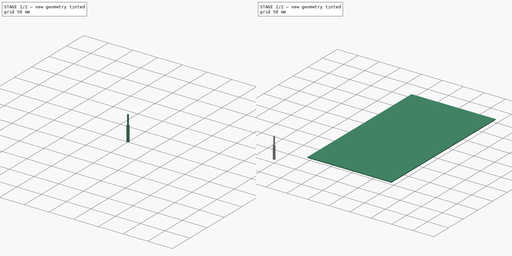
[diagram: build sequence overview — one tinted view per stage of 2, left to right]
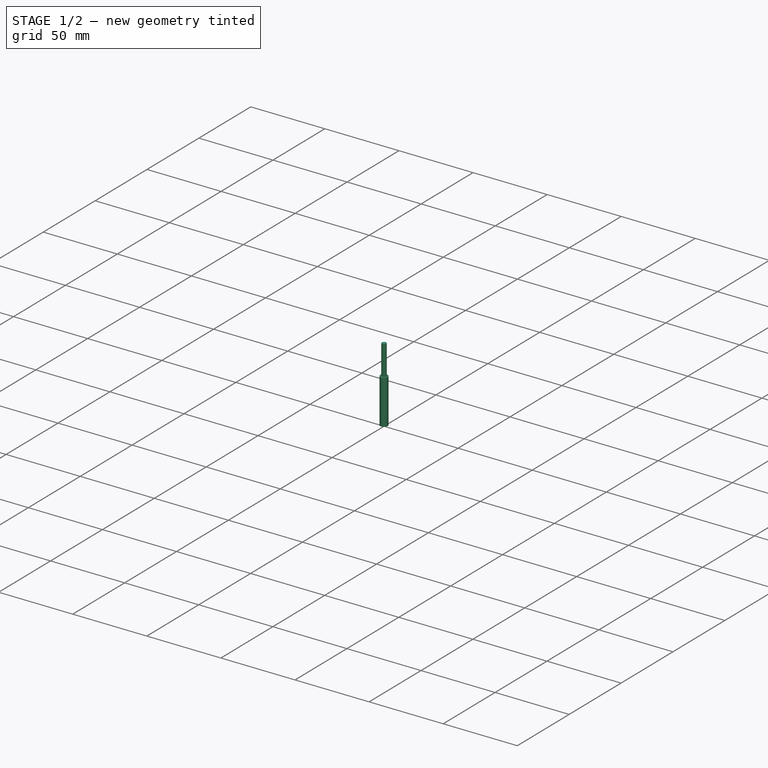
[diagram: stage 1 of 2 — iso view after this stage's code; geometry added in this stage tinted green]
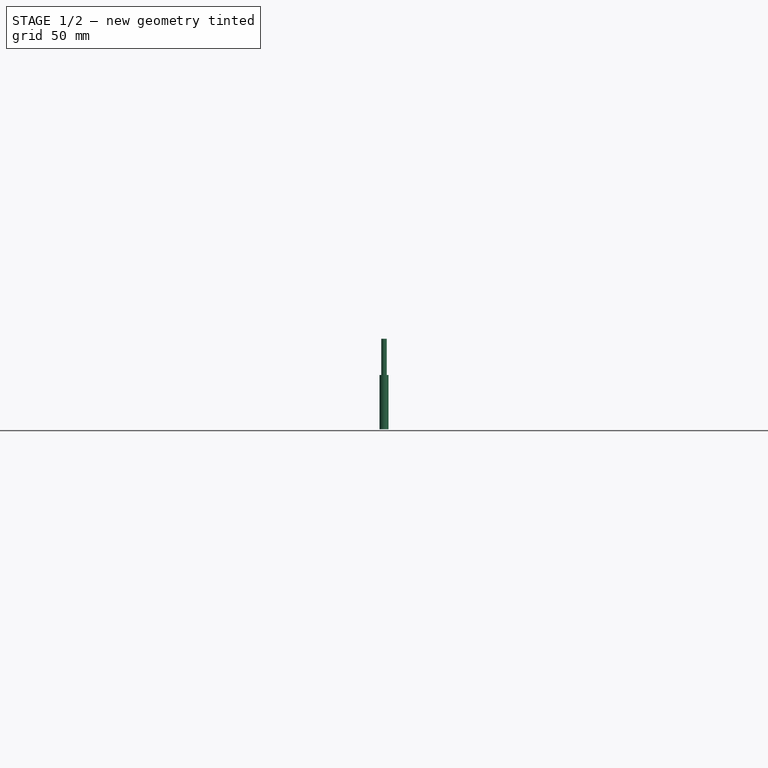
[diagram: stage 1 of 2 — front view after this stage's code; geometry added in this stage tinted green]
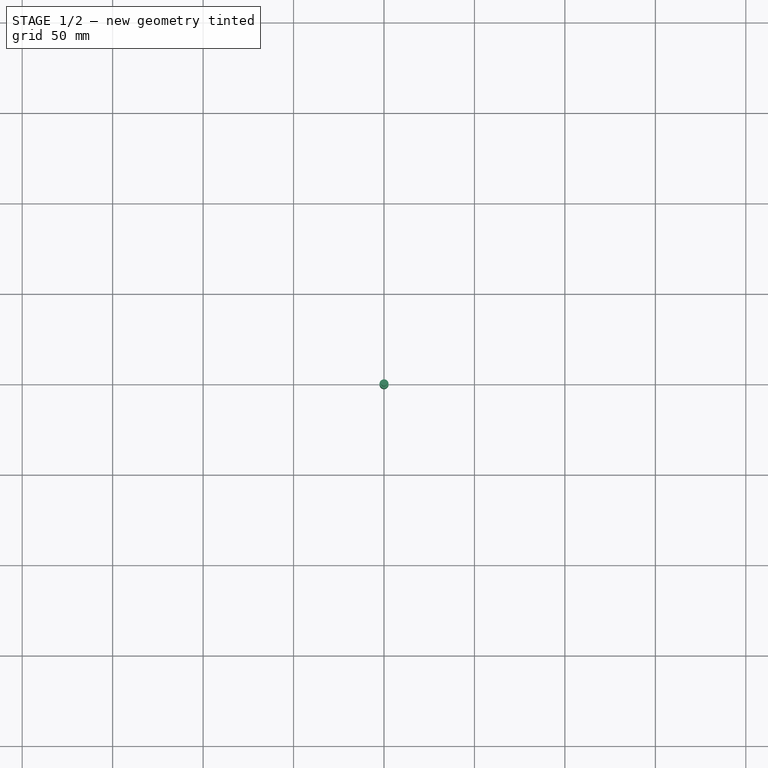
[diagram: stage 1 of 2 — top view after this stage's code; geometry added in this stage tinted green]
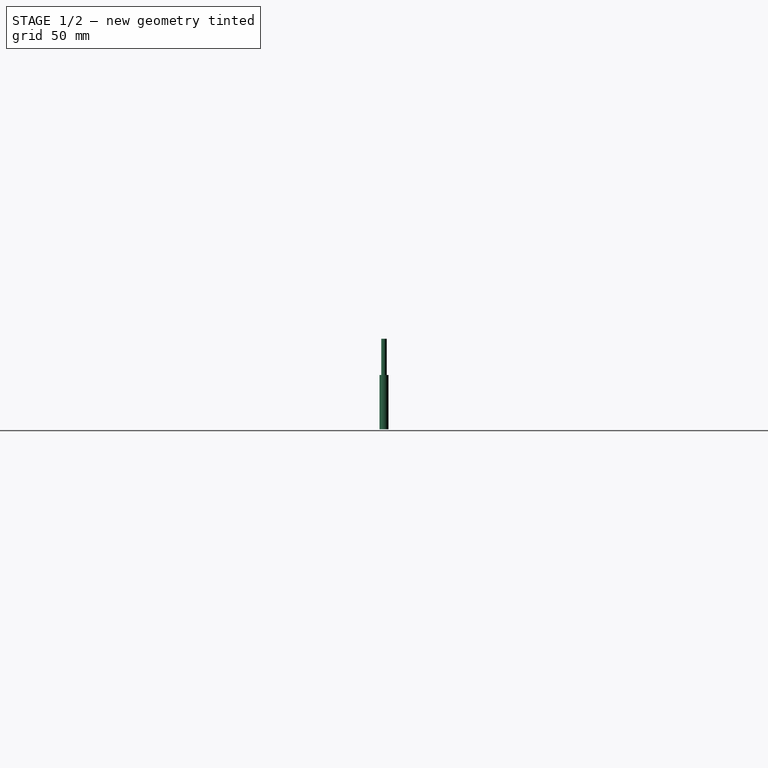
[diagram: stage 1 of 2 — right view after this stage's code; geometry added in this stage tinted green]
FCSTD DOCUMENT  (FreeCAD 1.0R39109 (Git))
Label: HousingAtari_T03.01
License: All rights reserved
LicenseURL: https://en.wikipedia.org/wiki/All_rights_reserved
objects: Sketcher::SketchObject×7, Part::Part2DObjectPython×5, App::DocumentObjectGroup×3, Path::FeaturePython×3, Part::FeaturePython×2, PartDesign::Body×1, App::FeaturePython×1
note: 22 computed .brp shape members not serialized (recipe doc carries the construction recipe); baked Part::Feature solids carry a one-line shape summary decoded from their .brp

FEATURE [Sketcher::SketchObject] Sketch  label="A3"
  ArcFitTolerance = 0
  FullyConstrained = false
  MakeInternals = false
  MapMode = 5
  sketch-geometry (7):
    g0: LineSegment StartX=0 StartY=420 StartZ=0 EndX=0 EndY=0 EndZ=0
    g1: LineSegment StartX=0 StartY=420 StartZ=0 EndX=148.5 EndY=420 EndZ=0
    g2: LineSegment StartX=148.5 StartY=420 StartZ=0 EndX=148.5 EndY=0 EndZ=0
    g3: LineSegment StartX=148.5 StartY=420 StartZ=0 EndX=297 EndY=420 EndZ=0
    g4: LineSegment StartX=297 StartY=420 StartZ=0 EndX=297 EndY=210 EndZ=0
    g5: LineSegment StartX=297 StartY=210 StartZ=0 EndX=297 EndY=0 EndZ=0
    g6: LineSegment StartX=297 StartY=210 StartZ=0 EndX=0 EndY=210 EndZ=0
  constraints (21):
    c: Vertical(g0)
    c: DistanceY(g0,g0) = 420
    c: Coincident(g1,g0)
    c: Horizontal(g1)
    c: Coincident(g2,g1)
    c: Coincident(g3,g1)
    c: Horizontal(g3)
    c: Equal(g1,g3)
    c: Vertical(g2)
    c: DistanceX(g0,g3) = 297
    c: Coincident(g4,g3)
    c: Vertical(g4)
    c: Coincident(g5,g4)
    c: PointOnObject(g5,g-1)
    c: Vertical(g5)
    c: Equal(g5,g4)
    c: PointOnObject(g0,g-1)
    c: PointOnObject(g0,g-2)
    c: Coincident(g6,g4)
    c: PointOnObject(g6,g0)
    c: Horizontal(g6)
FEATURE [Sketcher::SketchObject] Sketch001  label="BOX-OUTLINE"
  ArcFitTolerance = 0
  ExternalGeometry = -> [Sketch]
  FullyConstrained = false
  MakeInternals = false
  MapMode = 5
  sketch-geometry (60):
    g0: LineSegment StartX=83.5 StartY=362.836 StartZ=0 EndX=83.5 EndY=292.836 EndZ=0
    g1: LineSegment StartX=83.5 StartY=292.836 StartZ=0 EndX=83.5 EndY=222.836 EndZ=0
    g2: LineSegment StartX=83.5 StartY=222.836 StartZ=0 EndX=148.5 EndY=222.836 EndZ=0
    g3: LineSegment StartX=148.5 StartY=222.836 StartZ=0 EndX=213.5 EndY=222.836 EndZ=0
    g4: LineSegment StartX=213.5 StartY=222.836 StartZ=0 EndX=213.5 EndY=292.836 EndZ=0
    g5: LineSegment StartX=213.5 StartY=292.836 StartZ=0 EndX=213.5 EndY=362.836 EndZ=0
    g6: LineSegment StartX=213.5 StartY=362.836 StartZ=0 EndX=148.5 EndY=362.836 EndZ=0
    g7: LineSegment StartX=148.5 StartY=362.836 StartZ=0 EndX=83.5 EndY=362.836 EndZ=0
    g8: LineSegment StartX=83.5 StartY=222.836 StartZ=0 EndX=83.5 EndY=218.836 EndZ=0
    g9: LineSegment StartX=83.5 StartY=218.836 StartZ=0 EndX=213.5 EndY=218.836 EndZ=0
    g10: LineSegment StartX=213.5 StartY=218.836 StartZ=0 EndX=213.5 EndY=222.836 EndZ=0
    g11: LineSegment StartX=213.5 StartY=222.836 StartZ=0 EndX=217.5 EndY=222.836 EndZ=0
    g12: LineSegment StartX=217.5 StartY=222.836 StartZ=0 EndX=217.5 EndY=362.836 EndZ=0
    g13: LineSegment StartX=217.5 StartY=362.836 StartZ=0 EndX=213.5 EndY=362.836 EndZ=0
    g14: LineSegment StartX=213.5 StartY=362.836 StartZ=0 EndX=213.5 EndY=366.836 EndZ=0
    g15: LineSegment StartX=213.5 StartY=366.836 StartZ=0 EndX=83.5 EndY=366.836 EndZ=0
    g16: LineSegment StartX=83.5 StartY=366.836 StartZ=0 EndX=83.5 EndY=362.836 EndZ=0
    g17: LineSegment StartX=83.5 StartY=222.836 StartZ=0 EndX=79.5 EndY=222.836 EndZ=0
    g18: LineSegment StartX=79.5 StartY=222.836 StartZ=0 EndX=79.5 EndY=362.836 EndZ=0
    g19: LineSegment StartX=79.5 StartY=362.836 StartZ=0 EndX=83.5 EndY=362.836 EndZ=0
    g20: LineSegment StartX=83.5 StartY=218.836 StartZ=0 EndX=83.5 EndY=188.836 EndZ=0
    g21: LineSegment StartX=83.5 StartY=188.836 StartZ=0 EndX=213.5 EndY=188.836 EndZ=0
    g22: LineSegment StartX=213.5 StartY=188.836 StartZ=0 EndX=213.5 EndY=218.836 EndZ=0
    g23: LineSegment StartX=217.5 StartY=222.836 StartZ=0 EndX=243.5 EndY=222.836 EndZ=0
    g24: LineSegment StartX=243.5 StartY=222.836 StartZ=0 EndX=243.5 EndY=362.836 EndZ=0
    g25: LineSegment StartX=243.5 StartY=362.836 StartZ=0 EndX=217.5 EndY=362.836 EndZ=0
    g26: LineSegment StartX=213.5 StartY=366.836 StartZ=0 EndX=213.5 EndY=396.836 EndZ=0
    g27: LineSegment StartX=213.5 StartY=396.836 StartZ=0 EndX=83.5 EndY=396.836 EndZ=0
    g28: LineSegment StartX=83.5 StartY=396.836 StartZ=0 EndX=83.5 EndY=366.836 EndZ=0
    g29: LineSegment StartX=79.5 StartY=362.836 StartZ=0 EndX=53.5 EndY=362.836 EndZ=0
    g30: LineSegment StartX=53.5 StartY=362.836 StartZ=0 EndX=53.5 EndY=222.836 EndZ=0
    g31: LineSegment StartX=53.5 StartY=222.836 StartZ=0 EndX=79.5 EndY=222.836 EndZ=0
    g32: LineSegment StartX=213.5 StartY=188.836 StartZ=0 EndX=217.5 EndY=188.836 EndZ=0
    g33: LineSegment StartX=217.5 StartY=188.836 StartZ=0 EndX=217.5 EndY=222.836 EndZ=0
    g34: LineSegment StartX=213.5 StartY=218.836 StartZ=0 EndX=243.5 EndY=218.836 EndZ=0
    g35: LineSegment StartX=243.5 StartY=218.836 StartZ=0 EndX=243.5 EndY=222.836 EndZ=0
    g36: LineSegment StartX=213.5 StartY=366.836 StartZ=0 EndX=243.5 EndY=366.836 EndZ=0
    g37: LineSegment StartX=243.5 StartY=366.836 StartZ=0 EndX=243.5 EndY=362.836 EndZ=0
    g38: LineSegment StartX=217.5 StartY=362.836 StartZ=0 EndX=217.5 EndY=396.836 EndZ=0
    g39: LineSegment StartX=217.5 StartY=396.836 StartZ=0 EndX=213.5 EndY=396.836 EndZ=0
    g40: LineSegment StartX=83.5 StartY=396.836 StartZ=0 EndX=79.5 EndY=396.836 EndZ=0
    g41: LineSegment StartX=79.5 StartY=396.836 StartZ=0 EndX=79.5 EndY=362.836 EndZ=0
    g42: LineSegment StartX=53.5 StartY=362.836 StartZ=0 EndX=53.5 EndY=366.836 EndZ=0
    g43: LineSegment StartX=53.5 StartY=366.836 StartZ=0 EndX=83.5 EndY=366.836 EndZ=0
    g44: LineSegment StartX=53.5 StartY=222.836 StartZ=0 EndX=53.5 EndY=218.836 EndZ=0
    g45: LineSegment StartX=53.5 StartY=218.836 StartZ=0 EndX=83.5 EndY=218.836 EndZ=0
    g46: LineSegment StartX=79.5 StartY=222.836 StartZ=0 EndX=79.5 EndY=188.836 EndZ=0
    g47: LineSegment StartX=79.5 StartY=188.836 StartZ=0 EndX=83.5 EndY=188.836 EndZ=0
    g48: LineSegment StartX=83.5 StartY=188.836 StartZ=0 EndX=83.5 EndY=44.8363 EndZ=0
    g49: LineSegment StartX=83.5 StartY=44.8363 StartZ=0 EndX=213.5 EndY=44.8363 EndZ=0
    g50: LineSegment StartX=213.5 StartY=44.8363 StartZ=0 EndX=213.5 EndY=188.836 EndZ=0
    g51: LineSegment StartX=79.5 StartY=188.836 StartZ=0 EndX=79.5 EndY=48.8363 EndZ=0
    g52: LineSegment StartX=79.5 StartY=48.8363 StartZ=0 EndX=217.5 EndY=48.8363 EndZ=0
    g53: LineSegment StartX=217.5 StartY=48.8363 StartZ=0 EndX=217.5 EndY=188.836 EndZ=0
    g54: LineSegment StartX=79.5 StartY=192.836 StartZ=0 EndX=217.5 EndY=192.836 EndZ=0
    g55: LineSegment StartX=79.5 StartY=48.8363 StartZ=0 EndX=79.5 EndY=44.8363 EndZ=0
    g56: LineSegment StartX=217.5 StartY=48.8363 StartZ=0 EndX=217.5 EndY=44.8363 EndZ=0
    g57: LineSegment StartX=79.5 StartY=392.836 StartZ=0 EndX=217.5 EndY=392.836 EndZ=0
    g58: LineSegment StartX=247.5 StartY=366.836 StartZ=0 EndX=247.5 EndY=218.836 EndZ=0
    g59: LineSegment StartX=49.5 StartY=366.836 StartZ=0 EndX=49.5 EndY=218.836 EndZ=0
  constraints (166):
    c: Vertical(g0)
    c: Coincident(g1,g0)
    c: Vertical(g1)
    c: Coincident(g2,g1)
    c: Horizontal(g2)
    c: Coincident(g3,g2)
    c: Horizontal(g3)
    c: Coincident(g4,g3)
    c: Vertical(g4)
    c: Coincident(g5,g4)
    c: Vertical(g5)
    c: Horizontal(g6)
    c: Coincident(g7,g6)
    c: Coincident(g7,g0)
    c: Horizontal(g7)
    c: Vertical(g2,g6)
    c: Horizontal(g0,g4)
    c: Equal(g4,g5)
    c: Equal(g7,g6)
    c: Coincident(g5,g6)
    c: DistanceY(g1,g0) = 140
    c: DistanceX(g0,g5) = 130
    c: Coincident(g8,g1)
    c: Vertical(g8)
    c: Coincident(g9,g8)
    c: Horizontal(g9)
    c: Coincident(g10,g9)
    c: Coincident(g10,g3)
    c: Vertical(g10)
    c: Coincident(g11,g3)
    c: Horizontal(g11)
    c: Coincident(g12,g11)
    c: Vertical(g12)
    c: Coincident(g13,g12)
    c: Coincident(g13,g5)
    c: Horizontal(g13)
    c: Equal(g10,g11)
    c: DistanceY(g10,g10) = 4
    c: Coincident(g14,g5)
    c: Vertical(g14)
    c: Coincident(g15,g14)
    c: Horizontal(g15)
    c: Coincident(g16,g15)
    c: Coincident(g16,g0)
    c: Vertical(g16)
    c: Equal(g13,g14)
    c: Coincident(g17,g1)
    c: Horizontal(g17)
    c: Coincident(g18,g17)
    c: Vertical(g18)
    c: Coincident(g19,g18)
    c: Coincident(g19,g0)
    c: Horizontal(g19)
    c: Equal(g16,g19)
    c: Coincident(g20,g8)
    c: Vertical(g20)
    c: Coincident(g21,g20)
    c: Horizontal(g21)
    c: Coincident(g22,g21)
    c: Coincident(g22,g9)
    c: Coincident(g23,g11)
    c: Horizontal(g23)
    c: Coincident(g24,g23)
    c: Vertical(g24)
    c: Coincident(g25,g24)
    c: Coincident(g25,g12)
    c: Horizontal(g25)
    c: Coincident(g26,g14)
    c: Vertical(g26)
    c: Coincident(g27,g26)
    c: Horizontal(g27)
    c: Coincident(g28,g27)
    c: Coincident(g28,g15)
    c: Coincident(g29,g18)
    c: Horizontal(g29)
    c: Coincident(g30,g29)
    c: Vertical(g30)
    c: Coincident(g31,g30)
    c: Coincident(g31,g17)
    c: Horizontal(g31)
    c: Vertical(g22)
    c: Coincident(g32,g21)
    c: Horizontal(g32)
    c: Coincident(g33,g32)
    c: Coincident(g33,g11)
    c: Vertical(g33)
    c: Coincident(g34,g9)
    c: Horizontal(g34)
    c: Coincident(g35,g34)
    c: Coincident(g35,g23)
    c: Coincident(g36,g14)
    c: Horizontal(g36)
    c: Coincident(g37,g36)
    c: Coincident(g37,g24)
    c: Coincident(g38,g12)
    c: Vertical(g38)
    c: Coincident(g39,g38)
    c: Coincident(g39,g26)
    c: Horizontal(g39)
    c: Coincident(g40,g27)
    c: Horizontal(g40)
    c: Coincident(g41,g40)
    c: Coincident(g41,g18)
    c: Coincident(g42,g29)
    c: Vertical(g42)
    c: Coincident(g43,g42)
    c: Coincident(g43,g15)
    c: Coincident(g44,g30)
    c: Vertical(g44)
    c: Coincident(g45,g44)
    c: Coincident(g45,g8)
    c: Horizontal(g45)
    c: Coincident(g46,g17)
    c: Coincident(g47,g46)
    c: Coincident(g47,g20)
    c: Vertical(g37)
    c: Vertical(g46)
    c: Vertical(g35)
    c: Horizontal(g43)
    c: Horizontal(g47)
    c: DistanceY(g15,g27) = 30
    c: Vertical(g41)
    c: Vertical(g28)
    c: DistanceY(g22,g22) = 30
    c: Distance(g43,g43) = 30
    c: DistanceX(g34,g34) = 30
    c: Coincident(g48,g20)
    c: Vertical(g48)
    c: Coincident(g49,g48)
    c: Horizontal(g49)
    c: Coincident(g50,g49)
    c: Coincident(g50,g21)
    c: Vertical(g50)
    c: Coincident(g51,g46)
    c: Vertical(g51)
    c: Coincident(g52,g51)
    c: Horizontal(g52)
    c: Coincident(g53,g52)
    c: Coincident(g53,g32)
    c: Vertical(g53)
    c: PointOnObject(g54,g46)
    c: PointOnObject(g54,g33)
    c: Horizontal(g54)
    c: DistanceY(g46,g54) = 4
    c: Coincident(g55,g51)
    c: PointOnObject(g55,g49)
    c: Vertical(g55)
    c: DistanceY(g55,g55) = 4
    c: DistanceY(g51,g51) = 140
    c: DistanceY(g34,g36) = 148
    c: Coincident(g56,g52)
    c: PointOnObject(g56,g49)
    c: Vertical(g56)
    c: DistanceY(g56,g54) = 148
    c: PointOnObject(g57,g41)
    c: PointOnObject(g57,g38)
    c: Horizontal(g57)
    c: DistanceY(g57,g38) = 4
    c: PointOnObject(g6,g-3)
    c: PointOnObject(g58,g36)
    c: PointOnObject(g58,g34)
    c: Vertical(g58)
    c: PointOnObject(g59,g43)
    c: PointOnObject(g59,g45)
    c: Vertical(g59)
    c: DistanceX(g42,g59) = -4
FEATURE [PartDesign::Body] Body
  AllowCompound = false
  Group = -> [Sketch,Sketch001]
  Origin = -> Origin
FEATURE [Sketcher::SketchObject] Sketch002  label="CUT-BOX-BASE"
  ArcFitTolerance = 0
  ExternalGeometry = -> [Sketch001,Sketch]
  FullyConstrained = true
  MakeInternals = false
  MapMode = 5
  sketch-geometry (44):
    g0: LineSegment StartX=107.1 StartY=366.836 StartZ=0 EndX=79.5 EndY=366.836 EndZ=0
    g1: LineSegment StartX=189.9 StartY=366.836 StartZ=0 EndX=217.5 EndY=366.836 EndZ=0
    g2: LineSegment StartX=134.7 StartY=366.836 StartZ=0 EndX=162.3 EndY=366.836 EndZ=0
    g3: LineSegment StartX=162.3 StartY=362.836 StartZ=0 EndX=189.9 EndY=362.836 EndZ=0
    g4: LineSegment StartX=107.1 StartY=362.836 StartZ=0 EndX=134.7 EndY=362.836 EndZ=0
    g5: LineSegment StartX=107.1 StartY=366.836 StartZ=0 EndX=107.1 EndY=362.836 EndZ=0
    g6: LineSegment StartX=134.7 StartY=366.836 StartZ=0 EndX=134.7 EndY=362.836 EndZ=0
    g7: LineSegment StartX=162.3 StartY=366.836 StartZ=0 EndX=162.3 EndY=362.836 EndZ=0
    g8: LineSegment StartX=189.9 StartY=362.836 StartZ=0 EndX=189.9 EndY=366.836 EndZ=0
    g9: LineSegment [constr] StartX=107.1 StartY=362.836 StartZ=0 EndX=107.1 EndY=222.836 EndZ=0
    g10: LineSegment [constr] StartX=134.7 StartY=362.836 StartZ=0 EndX=134.7 EndY=222.836 EndZ=0
    g11: LineSegment [constr] StartX=162.3 StartY=362.836 StartZ=0 EndX=162.3 EndY=222.836 EndZ=0
    g12: LineSegment [constr] StartX=189.9 StartY=362.836 StartZ=0 EndX=189.9 EndY=222.836 EndZ=0
    g13: LineSegment StartX=79.5 StartY=218.836 StartZ=0 EndX=107.1 EndY=218.836 EndZ=0
    g14: LineSegment StartX=107.1 StartY=218.836 StartZ=0 EndX=107.1 EndY=222.836 EndZ=0
    g15: LineSegment StartX=107.1 StartY=222.836 StartZ=0 EndX=134.7 EndY=222.836 EndZ=0
    g16: LineSegment StartX=134.7 StartY=222.836 StartZ=0 EndX=134.7 EndY=218.836 EndZ=0
    g17: LineSegment StartX=134.7 StartY=218.836 StartZ=0 EndX=162.3 EndY=218.836 EndZ=0
    g18: LineSegment StartX=162.3 StartY=218.836 StartZ=0 EndX=162.3 EndY=222.836 EndZ=0
    g19: LineSegment StartX=162.3 StartY=222.836 StartZ=0 EndX=189.9 EndY=222.836 EndZ=0
    g20: LineSegment StartX=189.9 StartY=222.836 StartZ=0 EndX=189.9 EndY=218.836 EndZ=0
    g21: LineSegment StartX=189.9 StartY=218.836 StartZ=0 EndX=217.5 EndY=218.836 EndZ=0
    g22: LineSegment StartX=79.5 StartY=366.836 StartZ=0 EndX=79.5 EndY=336.163 EndZ=0
    g23: LineSegment StartX=79.5 StartY=305.49 StartZ=0 EndX=79.5 EndY=274.818 EndZ=0
    g24: LineSegment StartX=79.5 StartY=218.836 StartZ=0 EndX=79.5 EndY=244.145 EndZ=0
    g25: LineSegment StartX=79.5 StartY=336.163 StartZ=0 EndX=83.5 EndY=336.163 EndZ=0
    g26: LineSegment StartX=79.5 StartY=305.49 StartZ=0 EndX=83.5 EndY=305.49 EndZ=0
    g27: LineSegment StartX=79.5 StartY=274.818 StartZ=0 EndX=83.5 EndY=274.818 EndZ=0
    g28: LineSegment StartX=79.5 StartY=244.145 StartZ=0 EndX=83.5 EndY=244.145 EndZ=0
    g29: LineSegment StartX=83.5 StartY=305.49 StartZ=0 EndX=83.5 EndY=336.163 EndZ=0
    g30: LineSegment StartX=83.5 StartY=244.145 StartZ=0 EndX=83.5 EndY=274.818 EndZ=0
    g31: LineSegment [constr] StartX=83.5 StartY=336.163 StartZ=0 EndX=213.5 EndY=336.163 EndZ=0
    g32: LineSegment [constr] StartX=83.5 StartY=305.49 StartZ=0 EndX=213.5 EndY=305.49 EndZ=0
    g33: LineSegment [constr] StartX=83.5 StartY=274.818 StartZ=0 EndX=213.5 EndY=274.818 EndZ=0
    g34: LineSegment [constr] StartX=83.5 StartY=244.145 StartZ=0 EndX=213.5 EndY=244.145 EndZ=0
    g35: LineSegment StartX=217.5 StartY=366.836 StartZ=0 EndX=217.5 EndY=336.163 EndZ=0
    g36: LineSegment StartX=213.5 StartY=336.163 StartZ=0 EndX=217.5 EndY=336.163 EndZ=0
    g37: LineSegment StartX=213.5 StartY=305.49 StartZ=0 EndX=213.5 EndY=336.163 EndZ=0
    g38: LineSegment StartX=213.5 StartY=305.49 StartZ=0 EndX=217.5 EndY=305.49 EndZ=0
    g39: LineSegment StartX=213.5 StartY=274.818 StartZ=0 EndX=213.5 EndY=244.145 EndZ=0
    g40: LineSegment StartX=213.5 StartY=244.145 StartZ=0 EndX=217.5 EndY=244.145 EndZ=0
    g41: LineSegment StartX=217.5 StartY=244.145 StartZ=0 EndX=217.5 EndY=218.836 EndZ=0
    g42: LineSegment StartX=213.5 StartY=274.818 StartZ=0 EndX=217.5 EndY=274.818 EndZ=0
    g43: LineSegment StartX=217.5 StartY=274.818 StartZ=0 EndX=217.5 EndY=305.49 EndZ=0
  constraints (126):
    c: PointOnObject(g0,g-5)
    c: PointOnObject(g0,g-9)
    c: Horizontal(g0)
    c: PointOnObject(g1,g-5)
    c: PointOnObject(g1,g-10)
    c: Horizontal(g1)
    c: PointOnObject(g2,g-5)
    c: PointOnObject(g2,g-5)
    c: PointOnObject(g3,g-4)
    c: PointOnObject(g3,g-4)
    c: PointOnObject(g4,g-3)
    c: PointOnObject(g4,g-3)
    c: Coincident(g5,g0)
    c: Coincident(g5,g4)
    c: Coincident(g6,g2)
    c: Coincident(g6,g4)
    c: Coincident(g7,g2)
    c: Coincident(g7,g3)
    c: Coincident(g8,g3)
    c: Coincident(g8,g1)
    c: Vertical(g5)
    c: Vertical(g6)
    c: Vertical(g7)
    c: Vertical(g8)
    c: Equal(g0,g1)
    c: Equal(g4,g2)
    c: Equal(g3,g2)
    c: Equal(g0,g2)
    c: Coincident(g9,g4)
    c: PointOnObject(g9,g-6)
    c: Vertical(g9)
    c: Coincident(g10,g4)
    c: PointOnObject(g10,g-6)
    c: Vertical(g10)
    c: Coincident(g11,g3)
    c: PointOnObject(g11,g-8)
    c: Vertical(g11)
    c: Coincident(g12,g3)
    c: PointOnObject(g12,g-8)
    c: Vertical(g12)
    c: PointOnObject(g13,g-12)
    c: PointOnObject(g13,g-7)
    c: Horizontal(g13)
    c: Coincident(g14,g13)
    c: Coincident(g14,g9)
    c: Coincident(g15,g9)
    c: Coincident(g15,g10)
    c: Coincident(g16,g10)
    c: PointOnObject(g16,g-7)
    c: Coincident(g17,g16)
    c: PointOnObject(g17,g-7)
    c: Coincident(g18,g17)
    c: Coincident(g18,g11)
    c: Coincident(g19,g11)
    c: Coincident(g19,g12)
    c: Coincident(g20,g12)
    c: PointOnObject(g20,g-7)
    c: Vertical(g20)
    c: Coincident(g21,g20)
    c: PointOnObject(g21,g-11)
    c: Horizontal(g21)
    c: Vertical(g14)
    c: Vertical(g16)
    c: Vertical(g18)
    c: DistanceY(g21,g1) = 148
    c: DistanceX(g0,g1) = 138
    c: Coincident(g22,g0)
    c: PointOnObject(g22,g-14)
    c: PointOnObject(g23,g-14)
    c: PointOnObject(g23,g-14)
    c: Coincident(g24,g13)
    c: PointOnObject(g24,g-14)
    c: Coincident(g25,g22)
    c: PointOnObject(g25,g-16)
    c: Horizontal(g25)
    c: Coincident(g26,g23)
    c: PointOnObject(g26,g-16)
    c: Horizontal(g26)
    c: Coincident(g27,g23)
    c: PointOnObject(g27,g-17)
    c: Coincident(g28,g24)
    c: PointOnObject(g28,g-17)
    c: Horizontal(g28)
    c: Horizontal(g27)
    c: Equal(g22,g23)
    c: Coincident(g29,g26)
    c: Coincident(g29,g25)
    c: Coincident(g30,g28)
    c: Coincident(g30,g27)
    c: Equal(g30,g23)
    c: Equal(g29,g30)
    c: Equal(g29,g22)
    c: Coincident(g31,g25)
    c: PointOnObject(g31,g-18)
    c: Horizontal(g31)
    c: Coincident(g32,g26)
    c: PointOnObject(g32,g-18)
    c: Horizontal(g32)
    c: Coincident(g33,g27)
    c: PointOnObject(g33,g-19)
    c: Horizontal(g33)
    c: Coincident(g34,g28)
    c: PointOnObject(g34,g-19)
    c: Horizontal(g34)
    c: Coincident(g35,g1)
    c: PointOnObject(g35,g-15)
    c: Coincident(g36,g31)
    c: Coincident(g36,g35)
    c: Coincident(g37,g32)
    c: Coincident(g37,g31)
    c: Coincident(g38,g32)
    c: PointOnObject(g38,g-15)
    c: Coincident(g39,g33)
    c: Coincident(g39,g34)
    c: Coincident(g40,g34)
    c: PointOnObject(g40,g-15)
    c: Coincident(g41,g40)
    c: Coincident(g41,g21)
    c: Horizontal(g36)
    c: Horizontal(g38)
    c: Horizontal(g40)
    c: Coincident(g42,g33)
    c: PointOnObject(g42,g-15)
    c: Horizontal(g42)
    c: Coincident(g43,g42)
    c: Coincident(g43,g38)
FEATURE [Sketcher::SketchObject] Sketch003  label="CUT-Functional"
  ArcFitTolerance = 0
  ExternalGeometry = -> [Sketch]
  FullyConstrained = false
  MakeInternals = false
  MapMode = 5
  sketch-geometry (36):
    g0: LineSegment [constr] StartX=118.5 StartY=350.114 StartZ=0 EndX=148.5 EndY=350.114 EndZ=0
    g1: LineSegment [constr] StartX=148.5 StartY=350.114 StartZ=0 EndX=178.5 EndY=350.114 EndZ=0
    g2: Circle CenterX=118.5 CenterY=350.114 CenterZ=0 NormalX=0 NormalY=0 NormalZ=1 AngleXU=0 Radius=8
    g3: Circle CenterX=148.5 CenterY=350.114 CenterZ=0 NormalX=0 NormalY=0 NormalZ=1 AngleXU=0 Radius=8
    g4: Circle CenterX=178.5 CenterY=350.114 CenterZ=0 NormalX=0 NormalY=0 NormalZ=1 AngleXU=0 Radius=8
    g5: Circle CenterX=163.5 CenterY=331.863 CenterZ=0 NormalX=0 NormalY=0 NormalZ=1 AngleXU=0 Radius=8
    g6: Circle CenterX=133.5 CenterY=331.863 CenterZ=0 NormalX=0 NormalY=0 NormalZ=1 AngleXU=0 Radius=8
    g7: LineSegment [constr] StartX=133.5 StartY=331.863 StartZ=0 EndX=163.5 EndY=331.863 EndZ=0
    g8: LineSegment [constr] StartX=133.5 StartY=331.863 StartZ=0 EndX=118.5 EndY=350.114 EndZ=0
    g9: LineSegment [constr] StartX=163.5 StartY=331.863 StartZ=0 EndX=178.5 EndY=350.114 EndZ=0
    g10: LineSegment StartX=136 StartY=316.42 StartZ=0 EndX=136 EndY=306.42 EndZ=0
    g11: LineSegment StartX=136 StartY=306.42 StartZ=0 EndX=161 EndY=306.42 EndZ=0
    g12: LineSegment StartX=161 StartY=306.42 StartZ=0 EndX=161 EndY=316.42 EndZ=0
    g13: LineSegment StartX=136 StartY=316.42 StartZ=0 EndX=148.5 EndY=316.42 EndZ=0
    g14: LineSegment StartX=161 StartY=316.42 StartZ=0 EndX=148.5 EndY=316.42 EndZ=0
    g15: ArcOfCircle CenterX=230.249 CenterY=259.609 CenterZ=0 NormalX=0 NormalY=0 NormalZ=1 AngleXU=0 Radius=5 StartAngle=-1.05604e-11 EndAngle=3.14159
    g16: ArcOfCircle CenterX=230.249 CenterY=239.609 CenterZ=0 NormalX=0 NormalY=0 NormalZ=1 AngleXU=0 Radius=5 StartAngle=3.14159 EndAngle=6.28319
    g17: LineSegment StartX=235.249 StartY=259.609 StartZ=0 EndX=235.249 EndY=239.609 EndZ=0
    g18: LineSegment StartX=225.249 StartY=259.609 StartZ=0 EndX=225.249 EndY=239.609 EndZ=0
    g19: LineSegment [constr] StartX=67.0736 StartY=260.219 StartZ=0 EndX=67.0736 EndY=247.719 EndZ=0
    g20: LineSegment [constr] StartX=67.0736 StartY=247.719 StartZ=0 EndX=67.0736 EndY=235.219 EndZ=0
    g21: Circle CenterX=67.0736 CenterY=235.219 CenterZ=0 NormalX=0 NormalY=0 NormalZ=1 AngleXU=0 Radius=2
    g22: Circle CenterX=67.0736 CenterY=260.219 CenterZ=0 NormalX=0 NormalY=0 NormalZ=1 AngleXU=0 Radius=2
    g23: LineSegment [constr] StartX=67.0736 StartY=247.719 StartZ=0 EndX=70.7296 EndY=247.719 EndZ=0
    g24: LineSegment [constr] StartX=70.7296 StartY=247.719 StartZ=0 EndX=70.7296 EndY=255.982 EndZ=0
    g25: LineSegment [constr] StartX=70.7296 StartY=255.982 StartZ=0 EndX=62.7211 EndY=255.982 EndZ=0
    g26: LineSegment [constr] StartX=62.7211 StartY=255.982 StartZ=0 EndX=62.7211 EndY=247.719 EndZ=0
    g27: LineSegment [constr] StartX=62.7211 StartY=247.719 StartZ=0 EndX=67.0736 EndY=247.719 EndZ=0
    g28: LineSegment [constr] StartX=62.7296 StartY=238.982 StartZ=0 EndX=70.7296 EndY=238.982 EndZ=0
    g29: LineSegment [constr] StartX=70.7296 StartY=238.982 StartZ=0 EndX=70.7296 EndY=247.719 EndZ=0
    g30: LineSegment [constr] StartX=62.7296 StartY=255.995 StartZ=0 EndX=62.7211 EndY=238.995 EndZ=0
    g31: LineSegment StartX=62.7296 StartY=255.995 StartZ=0 EndX=62.7296 EndY=238.982 EndZ=0
    g32: LineSegment StartX=62.7296 StartY=239.09 StartZ=0 EndX=70.7296 EndY=240.829 EndZ=0
    g33: LineSegment StartX=70.7296 StartY=254.608 StartZ=0 EndX=62.9407 EndY=255.982 EndZ=0
    g34: LineSegment StartX=70.7296 StartY=240.829 StartZ=0 EndX=70.7296 EndY=247.719 EndZ=0
    g35: LineSegment StartX=70.7296 StartY=247.719 StartZ=0 EndX=70.7296 EndY=254.608 EndZ=0
  constraints (84):
    c: Horizontal(g0)
    c: Coincident(g1,g0)
    c: Horizontal(g1)
    c: Equal(g1,g0)
    c: Coincident(g2,g0)
    c: Coincident(g3,g0)
    c: Coincident(g4,g1)
    c: Equal(g4,g3)
    c: Equal(g3,g2)
    c: Diameter(g4) = 16
    c: DistanceX(g1,g1) = 30
    c: Coincident(g7,g6)
    c: Coincident(g7,g5)
    c: Equal(g1,g7)
    c: Horizontal(g7)
    c: Coincident(g8,g6)
    c: Coincident(g8,g0)
    c: Coincident(g9,g5)
    c: Coincident(g9,g1)
    c: Equal(g9,g8)
    c: Equal(g4,g5)
    c: Equal(g5,g6)
    c: Coincident(g10,g11)
    c: Coincident(g11,g12)
    c: Vertical(g10)
    c: Vertical(g12)
    c: Horizontal(g11)
    c: Coincident(g13,g10)
    c: PointOnObject(g13,g-3)
    c: Horizontal(g13)
    c: Coincident(g14,g12)
    c: Coincident(g14,g13)
    c: Horizontal(g14)
    c: Equal(g14,g13)
    c: DistanceX(g11,g11) = 25
    c: DistanceY(g12,g12) = 10
    c: PointOnObject(g0,g-3)
    c: Tangent(g15,g17) = 1.5708
    c: Tangent(g15,g18) = -1.5708
    c: Tangent(g16,g17) = 1.5708
    c: Tangent(g16,g18) = -1.5708
    c: Equal(g15,g16)
    c: Vertical(g18)
    c: DistanceX(g15,g15) = 10
    c: DistanceY(g17,g17) = 20
    c: Vertical(g19)
    c: Coincident(g20,g19)
    c: Vertical(g20)
    c: Coincident(g21,g20)
    c: Coincident(g22,g19)
    c: Equal(g22,g21)
    c: Diameter(g22) = 4
    c: Coincident(g23,g19)
    c: Horizontal(g23)
    c: Coincident(g24,g23)
    c: Vertical(g24)
    c: Coincident(g25,g24)
    c: Horizontal(g25)
    c: Coincident(g26,g25)
    c: Vertical(g26)
    c: Coincident(g27,g26)
    c: Coincident(g27,g19)
    c: Horizontal(g27)
    c: Horizontal(g28)
    c: Coincident(g29,g28)
    c: Coincident(g29,g23)
    c: Vertical(g29)
    c: DistanceY(g28,g25) = 17
    c: Equal(g19,g20)
    c: DistanceY(g20,g19) = 25
    c: DistanceX(g28,g28) = 8
    c: Coincident(g31,g30)
    c: Coincident(g31,g28)
    c: Vertical(g31)
    c: PointOnObject(g32,g31)
    c: PointOnObject(g32,g29)
    c: PointOnObject(g33,g24)
    c: PointOnObject(g33,g25)
    c: Angle(g33,g25) = 0.174533
    c: Coincident(g34,g32)
    c: Coincident(g34,g23)
    c: Coincident(g35,g23)
    c: Coincident(g35,g33)
    c: Equal(g35,g34)
FEATURE [Sketcher::SketchObject] Sketch004  label="CUT-BOX-WALLS"
  ArcFitTolerance = 0
  ExternalGeometry = -> [Sketch001,Sketch002]
  FullyConstrained = false
  MakeInternals = false
  MapMode = 5
  sketch-geometry (99):
    g0: LineSegment [constr] StartX=107.1 StartY=366.836 StartZ=0 EndX=107.1 EndY=396.836 EndZ=0
    g1: LineSegment [constr] StartX=134.7 StartY=366.836 StartZ=0 EndX=134.7 EndY=396.836 EndZ=0
    g2: LineSegment [constr] StartX=162.3 StartY=366.836 StartZ=0 EndX=162.3 EndY=396.836 EndZ=0
    g3: LineSegment [constr] StartX=189.9 StartY=366.836 StartZ=0 EndX=189.9 EndY=396.836 EndZ=0
    g4: LineSegment StartX=79.5 StartY=366.836 StartZ=0 EndX=79.5 EndY=376.836 EndZ=0
    g5: LineSegment StartX=79.5 StartY=376.836 StartZ=0 EndX=83.5 EndY=376.836 EndZ=0
    g6: LineSegment StartX=83.5 StartY=376.836 StartZ=0 EndX=83.5 EndY=386.836 EndZ=0
    g7: LineSegment StartX=83.5 StartY=386.836 StartZ=0 EndX=79.5 EndY=386.836 EndZ=0
    g8: LineSegment StartX=79.5 StartY=386.836 StartZ=0 EndX=79.5 EndY=396.836 EndZ=0
    g9: LineSegment StartX=79.5 StartY=362.836 StartZ=0 EndX=69.5 EndY=362.836 EndZ=0
    g10: LineSegment StartX=69.5 StartY=362.836 StartZ=0 EndX=69.5 EndY=366.836 EndZ=0
    g11: LineSegment StartX=69.5 StartY=366.836 StartZ=0 EndX=59.5 EndY=366.836 EndZ=0
    g12: LineSegment StartX=59.5 StartY=366.836 StartZ=0 EndX=59.5 EndY=362.815 EndZ=0
    g13: LineSegment StartX=59.5 StartY=362.815 StartZ=0 EndX=49.5 EndY=362.815 EndZ=0
    g14: LineSegment [constr] StartX=83.5 StartY=386.836 StartZ=0 EndX=217.5 EndY=386.836 EndZ=0
    g15: LineSegment [constr] StartX=83.5 StartY=376.836 StartZ=0 EndX=217.5 EndY=376.836 EndZ=0
    g16: LineSegment [constr] StartX=189.9 StartY=366.836 StartZ=0 EndX=189.9 EndY=396.836 EndZ=0
    g17: LineSegment StartX=217.5 StartY=366.836 StartZ=0 EndX=217.5 EndY=376.836 EndZ=0
    g18: LineSegment StartX=217.5 StartY=376.836 StartZ=0 EndX=213.5 EndY=376.836 EndZ=0
    g19: LineSegment StartX=213.5 StartY=376.836 StartZ=0 EndX=213.5 EndY=386.836 EndZ=0
    g20: LineSegment StartX=213.5 StartY=386.836 StartZ=0 EndX=217.5 EndY=386.836 EndZ=0
    g21: LineSegment StartX=217.5 StartY=386.836 StartZ=0 EndX=217.5 EndY=396.836 EndZ=0
    g22: LineSegment StartX=227.5 StartY=366.836 StartZ=0 EndX=237.5 EndY=366.836 EndZ=0
    g23: LineSegment StartX=237.5 StartY=366.836 StartZ=0 EndX=237.5 EndY=362.836 EndZ=0
    g24: LineSegment StartX=237.5 StartY=362.836 StartZ=0 EndX=247.5 EndY=362.836 EndZ=0
    g25: LineSegment StartX=217.5 StartY=362.836 StartZ=0 EndX=227.5 EndY=362.836 EndZ=0
    g26: LineSegment StartX=227.5 StartY=362.836 StartZ=0 EndX=227.5 EndY=366.836 EndZ=0
    g27: LineSegment [constr] StartX=59.5 StartY=362.815 StartZ=0 EndX=59.5 EndY=218.836 EndZ=0
    g28: LineSegment [constr] StartX=69.5 StartY=218.836 StartZ=0 EndX=69.5 EndY=362.836 EndZ=0
    g29: LineSegment [constr] StartX=227.5 StartY=362.836 StartZ=0 EndX=227.5 EndY=218.836 EndZ=0
    g30: LineSegment [constr] StartX=237.5 StartY=362.836 StartZ=0 EndX=237.5 EndY=218.836 EndZ=0
    g31: LineSegment StartX=79.5 StartY=222.836 StartZ=0 EndX=69.5 EndY=222.836 EndZ=0
    g32: LineSegment StartX=69.5 StartY=222.836 StartZ=0 EndX=69.5 EndY=218.836 EndZ=0
    g33: LineSegment StartX=69.5 StartY=218.836 StartZ=0 EndX=59.5 EndY=218.836 EndZ=0
    g34: LineSegment StartX=59.5 StartY=222.836 StartZ=0 EndX=59.5 EndY=218.836 EndZ=0
    g35: LineSegment StartX=59.5 StartY=222.836 StartZ=0 EndX=49.5 EndY=222.836 EndZ=0
    g36: LineSegment StartX=217.5 StartY=222.836 StartZ=0 EndX=227.5 EndY=222.836 EndZ=0
    g37: LineSegment StartX=227.5 StartY=222.836 StartZ=0 EndX=227.5 EndY=218.836 EndZ=0
    g38: LineSegment StartX=227.5 StartY=218.836 StartZ=0 EndX=237.5 EndY=218.836 EndZ=0
    g39: LineSegment StartX=247.5 StartY=222.836 StartZ=0 EndX=237.5 EndY=222.836 EndZ=0
    g40: LineSegment StartX=237.5 StartY=222.836 StartZ=0 EndX=237.5 EndY=218.836 EndZ=0
    g41: LineSegment StartX=79.5 StartY=218.836 StartZ=0 EndX=79.5 EndY=208.836 EndZ=0
    g42: LineSegment StartX=79.5 StartY=208.836 StartZ=0 EndX=83.5 EndY=208.836 EndZ=0
    g43: LineSegment StartX=83.5 StartY=208.836 StartZ=0 EndX=83.5 EndY=198.836 EndZ=0
    g44: LineSegment StartX=83.5 StartY=198.836 StartZ=0 EndX=79.5 EndY=198.836 EndZ=0
    g45: LineSegment StartX=79.5 StartY=198.836 StartZ=0 EndX=79.5 EndY=188.836 EndZ=0
    g46: LineSegment [constr] StartX=83.5 StartY=208.836 StartZ=0 EndX=213.5 EndY=208.836 EndZ=0
    g47: LineSegment [constr] StartX=83.5 StartY=198.836 StartZ=0 EndX=213.5 EndY=198.836 EndZ=0
    g48: LineSegment StartX=217.5 StartY=218.836 StartZ=0 EndX=217.5 EndY=208.836 EndZ=0
    g49: LineSegment StartX=217.5 StartY=208.836 StartZ=0 EndX=213.5 EndY=208.836 EndZ=0
    g50: LineSegment StartX=213.5 StartY=208.836 StartZ=0 EndX=213.5 EndY=198.836 EndZ=0
    g51: LineSegment StartX=213.5 StartY=198.836 StartZ=0 EndX=217.5 EndY=198.836 EndZ=0
    g52: LineSegment StartX=217.5 StartY=198.836 StartZ=0 EndX=217.5 EndY=188.836 EndZ=0
    g53: LineSegment [constr] StartX=49.5 StartY=336.163 StartZ=0 EndX=247.5 EndY=336.163 EndZ=0
    g54: LineSegment [constr] StartX=49.5 StartY=305.49 StartZ=0 EndX=247.5 EndY=305.49 EndZ=0
    g55: LineSegment [constr] StartX=49.5 StartY=274.818 StartZ=0 EndX=247.5 EndY=274.818 EndZ=0
    g56: LineSegment [constr] StartX=49.5 StartY=244.145 StartZ=0 EndX=247.5 EndY=244.145 EndZ=0
    g57: LineSegment [constr] StartX=107.1 StartY=396.836 StartZ=0 EndX=107.1 EndY=392.836 EndZ=0
    g58: LineSegment StartX=79.5 StartY=396.836 StartZ=0 EndX=107.1 EndY=396.836 EndZ=0
    g59: LineSegment StartX=107.1 StartY=392.836 StartZ=0 EndX=107.1 EndY=396.836 EndZ=0
    g60: LineSegment StartX=107.1 StartY=392.836 StartZ=0 EndX=134.7 EndY=392.836 EndZ=0
    g61: LineSegment StartX=134.7 StartY=392.836 StartZ=0 EndX=134.7 EndY=396.836 EndZ=0
    g62: LineSegment StartX=134.7 StartY=396.836 StartZ=0 EndX=162.3 EndY=396.836 EndZ=0
    g63: LineSegment StartX=162.3 StartY=396.836 StartZ=0 EndX=162.3 EndY=392.836 EndZ=0
    g64: LineSegment StartX=162.3 StartY=392.836 StartZ=0 EndX=189.9 EndY=392.836 EndZ=0
    g65: LineSegment StartX=189.9 StartY=392.836 StartZ=0 EndX=189.9 EndY=396.836 EndZ=0
    g66: LineSegment StartX=189.9 StartY=396.836 StartZ=0 EndX=217.5 EndY=396.836 EndZ=0
    g67: LineSegment [constr] StartX=107.1 StartY=362.836 StartZ=0 EndX=107.1 EndY=188.836 EndZ=0
    g68: LineSegment [constr] StartX=134.7 StartY=362.836 StartZ=0 EndX=134.7 EndY=188.836 EndZ=0
    g69: LineSegment [constr] StartX=162.3 StartY=362.836 StartZ=0 EndX=162.3 EndY=188.836 EndZ=0
    g70: LineSegment [constr] StartX=189.9 StartY=362.836 StartZ=0 EndX=189.9 EndY=188.836 EndZ=0
    g71: LineSegment StartX=79.5 StartY=188.836 StartZ=0 EndX=107.1 EndY=188.836 EndZ=0
    g72: LineSegment StartX=134.7 StartY=188.836 StartZ=0 EndX=162.3 EndY=188.836 EndZ=0
    g73: LineSegment StartX=189.9 StartY=188.836 StartZ=0 EndX=217.5 EndY=188.836 EndZ=0
    g74: LineSegment [constr] StartX=107.1 StartY=188.836 StartZ=0 EndX=107.1 EndY=192.836 EndZ=0
    g75: LineSegment StartX=107.1 StartY=188.836 StartZ=0 EndX=107.1 EndY=192.836 EndZ=0
    g76: LineSegment StartX=107.1 StartY=192.836 StartZ=0 EndX=134.7 EndY=192.836 EndZ=0
    g77: LineSegment StartX=134.7 StartY=192.836 StartZ=0 EndX=134.7 EndY=188.836 EndZ=0
    g78: LineSegment StartX=162.3 StartY=188.836 StartZ=0 EndX=162.3 EndY=192.836 EndZ=0
    g79: LineSegment StartX=162.3 StartY=192.836 StartZ=0 EndX=189.9 EndY=192.836 EndZ=0
    g80: LineSegment StartX=189.9 StartY=192.836 StartZ=0 EndX=189.9 EndY=188.836 EndZ=0
    g81: LineSegment StartX=49.5 StartY=222.836 StartZ=0 EndX=49.5 EndY=244.145 EndZ=0
    g82: LineSegment StartX=49.5 StartY=244.145 StartZ=0 EndX=53.5 EndY=244.145 EndZ=0
    g83: LineSegment StartX=53.5 StartY=244.145 StartZ=0 EndX=53.5 EndY=274.818 EndZ=0
    g84: LineSegment StartX=53.5 StartY=274.818 StartZ=0 EndX=49.5 EndY=274.818 EndZ=0
    g85: LineSegment StartX=49.5 StartY=274.818 StartZ=0 EndX=49.5 EndY=305.49 EndZ=0
    g86: LineSegment StartX=49.5 StartY=305.49 StartZ=0 EndX=53.5 EndY=305.49 EndZ=0
    g87: LineSegment StartX=53.5 StartY=305.49 StartZ=0 EndX=53.5 EndY=336.163 EndZ=0
    g88: LineSegment StartX=53.5 StartY=336.163 StartZ=0 EndX=49.5 EndY=336.163 EndZ=0
    g89: LineSegment StartX=49.5 StartY=336.163 StartZ=0 EndX=49.5 EndY=362.815 EndZ=0
    g90: LineSegment StartX=247.5 StartY=222.836 StartZ=0 EndX=247.5 EndY=244.145 EndZ=0
    g91: LineSegment StartX=247.5 StartY=244.145 StartZ=0 EndX=243.5 EndY=244.145 EndZ=0
    g92: LineSegment StartX=243.5 StartY=244.145 StartZ=0 EndX=243.5 EndY=274.818 EndZ=0
    g93: LineSegment StartX=243.5 StartY=274.818 StartZ=0 EndX=247.5 EndY=274.818 EndZ=0
    g94: LineSegment StartX=247.5 StartY=274.818 StartZ=0 EndX=247.5 EndY=305.49 EndZ=0
    g95: LineSegment StartX=247.5 StartY=362.836 StartZ=0 EndX=247.5 EndY=336.163 EndZ=0
    g96: LineSegment StartX=247.5 StartY=336.163 StartZ=0 EndX=243.5 EndY=336.163 EndZ=0
    g97: LineSegment StartX=243.5 StartY=336.163 StartZ=0 EndX=243.5 EndY=305.329 EndZ=0
    g98: LineSegment StartX=243.5 StartY=305.329 StartZ=0 EndX=247.5 EndY=305.49 EndZ=0
  constraints (273):
    c: Coincident(g0,g-18)
    c: PointOnObject(g0,g-22)
    c: Vertical(g0)
    c: Coincident(g1,g-17)
    c: PointOnObject(g1,g-22)
    c: Vertical(g1)
    c: Coincident(g2,g-16)
    c: PointOnObject(g2,g-22)
    c: Vertical(g2)
    c: Coincident(g3,g-15)
    c: PointOnObject(g3,g-22)
    c: Vertical(g3)
    c: PointOnObject(g4,g-27)
    c: PointOnObject(g4,g-27)
    c: Coincident(g5,g4)
    c: PointOnObject(g5,g-31)
    c: Horizontal(g5)
    c: Coincident(g6,g5)
    c: PointOnObject(g6,g-31)
    c: Coincident(g7,g6)
    c: PointOnObject(g7,g-27)
    c: Horizontal(g7)
    c: Coincident(g8,g7)
    c: Coincident(g8,g-27)
    c: Equal(g4,g6)
    c: Equal(g6,g8)
    c: PointOnObject(g4,g-23)
    c: Coincident(g9,g-27)
    c: Horizontal(g9)
    c: Coincident(g10,g9)
    c: PointOnObject(g10,g-23)
    c: Vertical(g10)
    c: Coincident(g11,g10)
    c: PointOnObject(g11,g-23)
    c: Coincident(g12,g11)
    c: Vertical(g12)
    c: Equal(g9,g4)
    c: Equal(g11,g6)
    c: DistanceY(g0,g0) = 30
    c: DistanceX(g-32,g-3) = 30
    c: Coincident(g13,g12)
    c: PointOnObject(g13,g-32)
    c: Horizontal(g13)
    c: Equal(g13,g11)
    c: DistanceY(g-29,g-33) = 30
    c: Coincident(g14,g6)
    c: PointOnObject(g14,g-28)
    c: Horizontal(g14)
    c: Coincident(g15,g5)
    c: PointOnObject(g15,g-28)
    c: Horizontal(g15)
    c: Coincident(g16,g-15)
    c: PointOnObject(g16,g-22)
    c: Vertical(g16)
    c: PointOnObject(g17,g-24)
    c: Coincident(g17,g15)
    c: Vertical(g17)
    c: Coincident(g18,g15)
    c: PointOnObject(g18,g-34)
    c: Horizontal(g18)
    c: Coincident(g19,g18)
    c: PointOnObject(g19,g-34)
    c: Coincident(g20,g19)
    c: Coincident(g20,g14)
    c: Horizontal(g20)
    c: Coincident(g21,g14)
    c: Coincident(g21,g-28)
    c: PointOnObject(g22,g-24)
    c: Coincident(g23,g22)
    c: Vertical(g23)
    c: Coincident(g24,g23)
    c: PointOnObject(g24,g-33)
    c: Horizontal(g24)
    c: PointOnObject(g22,g-24)
    c: PointOnObject(g-20,g24)
    c: Equal(g24,g22)
    c: Equal(g22,g19)
    c: Coincident(g25,g-28)
    c: Horizontal(g25)
    c: Coincident(g26,g25)
    c: Coincident(g26,g22)
    c: Vertical(g26)
    c: Coincident(g27,g12)
    c: PointOnObject(g27,g-26)
    c: Vertical(g27)
    c: PointOnObject(g28,g-26)
    c: Coincident(g28,g9)
    c: Vertical(g28)
    c: Coincident(g29,g25)
    c: PointOnObject(g29,g-25)
    c: Vertical(g29)
    c: Coincident(g30,g23)
    c: PointOnObject(g30,g-25)
    c: Vertical(g30)
    c: Coincident(g31,g-30)
    c: PointOnObject(g31,g28)
    c: Horizontal(g31)
    c: Coincident(g32,g31)
    c: Coincident(g32,g28)
    c: Coincident(g33,g28)
    c: Coincident(g33,g27)
    c: PointOnObject(g34,g27)
    c: Coincident(g34,g27)
    c: Equal(g34,g32)
    c: Coincident(g35,g34)
    c: PointOnObject(g35,g-32)
    c: Horizontal(g35)
    c: Coincident(g36,g-29)
    c: PointOnObject(g36,g29)
    c: Horizontal(g36)
    c: Coincident(g37,g36)
    c: Coincident(g37,g29)
    c: Coincident(g38,g29)
    c: Coincident(g38,g30)
    c: PointOnObject(g39,g-33)
    c: PointOnObject(g39,g30)
    c: Horizontal(g39)
    c: Coincident(g40,g39)
    c: Coincident(g40,g30)
    c: Equal(g37,g40)
    c: PointOnObject(g41,g-26)
    c: PointOnObject(g41,g-30)
    c: Vertical(g41)
    c: Coincident(g42,g41)
    c: Horizontal(g42)
    c: Coincident(g43,g42)
    c: PointOnObject(g43,g-35)
    c: Vertical(g43)
    c: Coincident(g44,g43)
    c: PointOnObject(g44,g-30)
    c: Horizontal(g44)
    c: Coincident(g45,g44)
    c: Coincident(g45,g-30)
    c: Equal(g31,g41)
    c: Equal(g43,g41)
    c: Coincident(g46,g42)
    c: PointOnObject(g46,g-36)
    c: Horizontal(g46)
    c: Coincident(g47,g43)
    c: PointOnObject(g47,g-36)
    c: Horizontal(g47)
    c: PointOnObject(g48,g-25)
    c: PointOnObject(g48,g-29)
    c: Vertical(g48)
    c: Coincident(g49,g48)
    c: Coincident(g49,g46)
    c: Horizontal(g49)
    c: Coincident(g50,g46)
    c: Coincident(g50,g47)
    c: Coincident(g51,g47)
    c: PointOnObject(g51,g-29)
    c: Horizontal(g51)
    c: Coincident(g52,g51)
    c: Coincident(g52,g-29)
    c: PointOnObject(g53,g-32)
    c: PointOnObject(g53,g-33)
    c: Horizontal(g53)
    c: PointOnObject(g54,g-32)
    c: PointOnObject(g54,g-33)
    c: Horizontal(g54)
    c: PointOnObject(g55,g-32)
    c: PointOnObject(g55,g-33)
    c: Horizontal(g55)
    c: PointOnObject(g56,g-32)
    c: PointOnObject(g56,g-33)
    c: Horizontal(g56)
    c: PointOnObject(g-3,g53)
    c: PointOnObject(g-4,g54)
    c: PointOnObject(g-5,g55)
    c: PointOnObject(g-6,g56)
    c: Coincident(g58,g8)
    c: Coincident(g58,g0)
    c: Coincident(g59,g57)
    c: Coincident(g59,g57)
    c: Vertical(g59)
    c: Coincident(g60,g57)
    c: PointOnObject(g60,g1)
    c: Horizontal(g60)
    c: Coincident(g61,g60)
    c: Coincident(g61,g1)
    c: Coincident(g57,g0)
    c: Coincident(g62,g1)
    c: Coincident(g62,g2)
    c: Coincident(g63,g2)
    c: PointOnObject(g63,g2)
    c: Coincident(g64,g63)
    c: PointOnObject(g64,g16)
    c: Horizontal(g64)
    c: Coincident(g65,g64)
    c: Coincident(g65,g16)
    c: Coincident(g66,g16)
    c: Coincident(g66,g21)
    c: PointOnObject(g64,g-37)
    c: PointOnObject(g60,g-37)
    c: Coincident(g67,g-18)
    c: PointOnObject(g67,g-21)
    c: Vertical(g67)
    c: Coincident(g68,g-17)
    c: PointOnObject(g68,g-21)
    c: Vertical(g68)
    c: Coincident(g69,g-16)
    c: PointOnObject(g69,g-21)
    c: Vertical(g69)
    c: Coincident(g70,g-15)
    c: PointOnObject(g70,g-21)
    c: Vertical(g70)
    c: Coincident(g71,g45)
    c: Coincident(g71,g67)
    c: Coincident(g72,g68)
    c: Coincident(g72,g69)
    c: Coincident(g73,g70)
    c: Coincident(g73,g52)
    c: Coincident(g75,g74)
    c: Coincident(g75,g74)
    c: Vertical(g75)
    c: Coincident(g74,g67)
    c: PointOnObject(g74,g-38)
    c: Coincident(g76,g74)
    c: PointOnObject(g76,g68)
    c: Horizontal(g76)
    c: Coincident(g77,g76)
    c: Coincident(g77,g68)
    c: Coincident(g78,g69)
    c: PointOnObject(g78,g-38)
    c: Vertical(g78)
    c: Coincident(g79,g78)
    c: PointOnObject(g79,g-38)
    c: Coincident(g80,g79)
    c: Coincident(g80,g70)
    c: Vertical(g80)
    c: Coincident(g81,g35)
    c: Coincident(g81,g56)
    c: Coincident(g82,g56)
    c: PointOnObject(g82,g-19)
    c: Horizontal(g82)
    c: Coincident(g83,g82)
    c: PointOnObject(g83,g-19)
    c: Coincident(g84,g83)
    c: Coincident(g84,g55)
    c: Horizontal(g84)
    c: Coincident(g85,g55)
    c: Coincident(g85,g54)
    c: Coincident(g86,g54)
    c: PointOnObject(g86,g-19)
    c: Horizontal(g86)
    c: Coincident(g87,g86)
    c: PointOnObject(g87,g-19)
    c: Coincident(g88,g87)
    c: Coincident(g88,g53)
    c: Horizontal(g88)
    c: Coincident(g89,g53)
    c: Coincident(g89,g13)
    c: Coincident(g90,g39)
    c: Coincident(g90,g56)
    c: Coincident(g91,g56)
    c: PointOnObject(g91,g56)
    c: Coincident(g92,g91)
    c: PointOnObject(g92,g-20)
    c: Vertical(g92)
    c: Coincident(g93,g92)
    c: Coincident(g93,g55)
    c: Coincident(g94,g55)
    c: Coincident(g94,g54)
    c: Horizontal(g93)
    c: Coincident(g95,g24)
    c: Coincident(g95,g53)
    c: Coincident(g96,g53)
    c: PointOnObject(g96,g-20)
    c: Horizontal(g96)
    c: Coincident(g97,g96)
    c: PointOnObject(g97,g-20)
    c: Coincident(g98,g97)
    c: Coincident(g98,g54)
FEATURE [Sketcher::SketchObject] Sketch006  label="CUT-ROOF"
  ArcFitTolerance = 0
  ExternalGeometry = -> [Sketch004,Sketch002,Sketch001]
  FullyConstrained = true
  MakeInternals = false
  MapMode = 2
  sketch-geometry (49):
    g0: LineSegment [constr] StartX=107.1 StartY=188.836 StartZ=0 EndX=107.1 EndY=44.8363 EndZ=0
    g1: LineSegment [constr] StartX=134.7 StartY=188.836 StartZ=0 EndX=134.7 EndY=44.8363 EndZ=0
    g2: LineSegment [constr] StartX=162.3 StartY=188.836 StartZ=0 EndX=162.3 EndY=44.8363 EndZ=0
    g3: LineSegment [constr] StartX=189.9 StartY=188.836 StartZ=0 EndX=189.9 EndY=44.8363 EndZ=0
    g4: LineSegment [constr] StartX=247.5 StartY=366.836 StartZ=0 EndX=395.5 EndY=218.836 EndZ=0
    g5: LineSegment [constr] StartX=395.5 StartY=218.836 StartZ=0 EndX=247.5 EndY=218.836 EndZ=0
    g6: LineSegment [constr] StartX=247.5 StartY=244.145 StartZ=0 EndX=370.192 EndY=244.145 EndZ=0
    g7: LineSegment [constr] StartX=247.5 StartY=274.818 StartZ=0 EndX=339.519 EndY=274.818 EndZ=0
    g8: LineSegment [constr] StartX=247.5 StartY=305.49 StartZ=0 EndX=308.846 EndY=305.49 EndZ=0
    g9: LineSegment [constr] StartX=247.5 StartY=336.163 StartZ=0 EndX=278.173 EndY=336.163 EndZ=0
    g10: LineSegment [constr] StartX=217.5 StartY=44.8363 StartZ=0 EndX=395.5 EndY=44.8363 EndZ=0
    g11: LineSegment [constr] StartX=395.5 StartY=44.8363 StartZ=0 EndX=395.5 EndY=218.836 EndZ=0
    g12: LineSegment [constr] StartX=395.5 StartY=44.8363 StartZ=0 EndX=247.5 EndY=192.836 EndZ=0
    g13: LineSegment [constr] StartX=278.173 StartY=336.163 StartZ=0 EndX=278.173 EndY=162.163 EndZ=0
    g14: LineSegment [constr] StartX=308.846 StartY=305.49 StartZ=0 EndX=308.846 EndY=131.49 EndZ=0
    g15: LineSegment [constr] StartX=339.519 StartY=274.818 StartZ=0 EndX=339.519 EndY=100.818 EndZ=0
    g16: LineSegment [constr] StartX=370.192 StartY=244.145 StartZ=0 EndX=370.192 EndY=70.1447 EndZ=0
    g17: LineSegment [constr] StartX=278.173 StartY=162.163 StartZ=0 EndX=79.5 EndY=162.163 EndZ=0
    g18: LineSegment [constr] StartX=308.846 StartY=131.49 StartZ=0 EndX=79.5 EndY=131.49 EndZ=0
    g19: LineSegment [constr] StartX=370.192 StartY=70.1447 StartZ=0 EndX=79.5 EndY=70.1447 EndZ=0
    g20: LineSegment StartX=213.5 StartY=188.836 StartZ=0 EndX=213.5 EndY=162.163 EndZ=0
    g21: LineSegment StartX=217.5 StartY=162.163 StartZ=0 EndX=213.5 EndY=162.163 EndZ=0
    g22: LineSegment StartX=217.5 StartY=162.163 StartZ=0 EndX=217.5 EndY=131.49 EndZ=0
    g23: LineSegment StartX=217.5 StartY=131.49 StartZ=0 EndX=213.5 EndY=131.49 EndZ=0
    g24: LineSegment [constr] StartX=339.519 StartY=100.818 StartZ=0 EndX=217.5 EndY=100.818 EndZ=0
    g25: LineSegment StartX=213.5 StartY=131.49 StartZ=0 EndX=213.5 EndY=100.818 EndZ=0
    g26: LineSegment StartX=213.5 StartY=100.818 StartZ=0 EndX=217.5 EndY=100.818 EndZ=0
    g27: LineSegment StartX=217.5 StartY=100.818 StartZ=0 EndX=217.5 EndY=70.1447 EndZ=0
    g28: LineSegment StartX=217.5 StartY=70.1447 StartZ=0 EndX=213.5 EndY=70.1447 EndZ=0
    g29: LineSegment StartX=213.5 StartY=70.1447 StartZ=0 EndX=213.5 EndY=48.8363 EndZ=0
    g30: LineSegment StartX=83.5 StartY=188.836 StartZ=0 EndX=83.5 EndY=162.163 EndZ=0
    g31: LineSegment StartX=83.5 StartY=162.163 StartZ=0 EndX=79.5 EndY=162.163 EndZ=0
    g32: LineSegment StartX=79.5 StartY=162.163 StartZ=0 EndX=79.5 EndY=131.49 EndZ=0
    g33: LineSegment StartX=79.5 StartY=131.49 StartZ=0 EndX=83.5 EndY=131.49 EndZ=0
    g34: LineSegment StartX=83.5 StartY=131.49 StartZ=0 EndX=83.5 EndY=100.818 EndZ=0
    g35: LineSegment StartX=83.5 StartY=100.818 StartZ=0 EndX=79.5 EndY=100.818 EndZ=0
    g36: LineSegment StartX=79.5 StartY=100.818 StartZ=0 EndX=79.5 EndY=70.1447 EndZ=0
    g37: LineSegment StartX=79.5 StartY=70.1447 StartZ=0 EndX=83.5 EndY=70.1447 EndZ=0
    g38: LineSegment StartX=83.5 StartY=70.1447 StartZ=0 EndX=83.5 EndY=48.8363 EndZ=0
    g39: LineSegment StartX=83.5 StartY=48.8363 StartZ=0 EndX=107.1 EndY=48.8363 EndZ=0
    g40: LineSegment StartX=107.1 StartY=48.8363 StartZ=0 EndX=107.1 EndY=44.8363 EndZ=0
    g41: LineSegment StartX=107.1 StartY=44.8363 StartZ=0 EndX=134.7 EndY=44.8363 EndZ=0
    g42: LineSegment StartX=162.3 StartY=44.8363 StartZ=0 EndX=189.9 EndY=44.8363 EndZ=0
    g43: LineSegment StartX=213.5 StartY=48.8363 StartZ=0 EndX=189.9 EndY=48.8363 EndZ=0
    g44: LineSegment StartX=189.9 StartY=48.8363 StartZ=0 EndX=189.9 EndY=44.8363 EndZ=0
    g45: LineSegment StartX=162.3 StartY=44.8363 StartZ=0 EndX=162.3 EndY=48.8363 EndZ=0
    g46: LineSegment StartX=162.3 StartY=48.8363 StartZ=0 EndX=134.7 EndY=48.8363 EndZ=0
    g47: LineSegment StartX=134.7 StartY=48.8363 StartZ=0 EndX=134.7 EndY=44.8363 EndZ=0
    g48: LineSegment [constr] StartX=217.5 StartY=100.818 StartZ=0 EndX=79.5 EndY=100.818 EndZ=0
  constraints (136):
    c: Coincident(g0,g-3)
    c: PointOnObject(g0,g-13)
    c: Vertical(g0)
    c: PointOnObject(g1,g-13)
    c: Vertical(g1)
    c: Coincident(g2,g-20)
    c: PointOnObject(g2,g-13)
    c: Vertical(g2)
    c: Coincident(g3,g-21)
    c: PointOnObject(g3,g-13)
    c: Vertical(g3)
    c: Coincident(g1,g-19)
    c: Coincident(g4,g-23)
    c: Coincident(g5,g4)
    c: Coincident(g5,g-23)
    c: Horizontal(g5)
    c: Angle(g4,g5) = 0.785398
    c: Coincident(g6,g-27)
    c: PointOnObject(g6,g4)
    c: Horizontal(g6)
    c: Coincident(g7,g-26)
    c: PointOnObject(g7,g4)
    c: Horizontal(g7)
    c: Coincident(g8,g-25)
    c: PointOnObject(g8,g4)
    c: Horizontal(g8)
    c: Coincident(g9,g-24)
    c: PointOnObject(g9,g4)
    c: Horizontal(g9)
    c: Coincident(g10,g-28)
    c: Horizontal(g10)
    c: Coincident(g11,g10)
    c: Coincident(g11,g4)
    c: Vertical(g11)
    c: Coincident(g12,g10)
    c: Angle(g12,g10) = 0.785398
    c: Horizontal(g12,g-21)
    c: Coincident(g13,g9)
    c: PointOnObject(g13,g12)
    c: Vertical(g13)
    c: Coincident(g14,g8)
    c: PointOnObject(g14,g12)
    c: Vertical(g14)
    c: Coincident(g15,g7)
    c: PointOnObject(g15,g12)
    c: Vertical(g15)
    c: Coincident(g16,g6)
    c: PointOnObject(g16,g12)
    c: Vertical(g16)
    c: Coincident(g17,g13)
    c: PointOnObject(g17,g-16)
    c: Horizontal(g17)
    c: Coincident(g18,g14)
    c: PointOnObject(g18,g-16)
    c: Horizontal(g18)
    c: Coincident(g19,g16)
    c: PointOnObject(g19,g-16)
    c: Horizontal(g19)
    c: Coincident(g20,g-17)
    c: PointOnObject(g20,g17)
    c: Vertical(g20)
    c: PointOnObject(g21,g17)
    c: Coincident(g21,g20)
    c: Coincident(g22,g21)
    c: PointOnObject(g22,g18)
    c: Vertical(g22)
    c: Coincident(g23,g22)
    c: PointOnObject(g23,g18)
    c: PointOnObject(g22,g-18)
    c: PointOnObject(g23,g-17)
    c: Coincident(g24,g15)
    c: PointOnObject(g24,g-18)
    c: Horizontal(g24)
    c: Coincident(g25,g23)
    c: PointOnObject(g25,g-17)
    c: Coincident(g26,g25)
    c: Coincident(g26,g24)
    c: Horizontal(g26)
    c: Coincident(g27,g24)
    c: PointOnObject(g27,g-18)
    c: Coincident(g28,g27)
    c: PointOnObject(g28,g-17)
    c: Horizontal(g28)
    c: Coincident(g29,g28)
    c: PointOnObject(g29,g-17)
    c: PointOnObject(g28,g19)
    c: PointOnObject(g29,g-14)
    c: Coincident(g30,g-15)
    c: PointOnObject(g30,g17)
    c: Vertical(g30)
    c: Coincident(g31,g30)
    c: Coincident(g31,g17)
    c: Coincident(g32,g17)
    c: Coincident(g32,g18)
    c: Coincident(g33,g18)
    c: PointOnObject(g33,g-15)
    c: Horizontal(g33)
    c: Coincident(g34,g33)
    c: PointOnObject(g34,g-15)
    c: Coincident(g35,g34)
    c: PointOnObject(g35,g-16)
    c: Horizontal(g35)
    c: Coincident(g36,g35)
    c: Coincident(g36,g19)
    c: Coincident(g37,g19)
    c: PointOnObject(g37,g19)
    c: Coincident(g38,g37)
    c: PointOnObject(g38,g-14)
    c: Vertical(g38)
    c: Coincident(g39,g38)
    c: PointOnObject(g39,g0)
    c: Horizontal(g39)
    c: Coincident(g40,g39)
    c: Coincident(g40,g0)
    c: Coincident(g41,g0)
    c: Coincident(g41,g1)
    c: Coincident(g42,g2)
    c: Coincident(g42,g3)
    c: Coincident(g43,g29)
    c: PointOnObject(g43,g3)
    c: Horizontal(g43)
    c: Coincident(g44,g43)
    c: Coincident(g44,g3)
    c: Coincident(g45,g2)
    c: PointOnObject(g45,g-14)
    c: Vertical(g45)
    c: Coincident(g46,g45)
    c: PointOnObject(g46,g1)
    c: Horizontal(g46)
    c: Coincident(g47,g46)
    c: Coincident(g47,g1)
    c: PointOnObject(g38,g-15)
    c: Coincident(g48,g24)
    c: PointOnObject(g48,g-16)
    c: Horizontal(g48)
    c: PointOnObject(g35,g48)
FEATURE [Sketcher::SketchObject] Sketch007  label="CUT-BackCover"
  ArcFitTolerance = 1e-06
  AttachmentSupport = -> [Sketch006]
  ExternalGeometry = -> [Sketch006]
  FullyConstrained = true
  MakeInternals = false
  MapMode = 2
  sketch-geometry (4):
    g0: LineSegment StartX=93.5 StartY=178.836 StartZ=0 EndX=93.5 EndY=60.1447 EndZ=0
    g1: LineSegment StartX=93.5 StartY=60.1447 StartZ=0 EndX=203.5 EndY=60.1447 EndZ=0
    g2: LineSegment StartX=203.5 StartY=60.1447 StartZ=0 EndX=203.5 EndY=178.836 EndZ=0
    g3: LineSegment StartX=203.5 StartY=178.836 StartZ=0 EndX=93.5 EndY=178.836 EndZ=0
  constraints (12):
    c: Coincident(g0,g1)
    c: Coincident(g1,g2)
    c: Coincident(g2,g3)
    c: Coincident(g3,g0)
    c: Vertical(g0)
    c: Vertical(g2)
    c: Horizontal(g1)
    c: Horizontal(g3)
    c: DistanceX(g1,g-5) = 10
    c: DistanceY(g1,g-5) = 10
    c: DistanceX(g-3,g0) = 10
    c: DistanceY(g0,g-3) = 10
FEATURE [App::FeaturePython] SetupSheet  # Path/CAM operation (typed FeaturePython)
  ClearanceHeightExpression = OpStockZMax+SetupSheet.ClearanceHeightOffset
  ClearanceHeightOffset = 5
  CoolantMode = 0
  CoolantModes = None | Flood | Mist
  FinalDepthExpression = OpFinalDepth
  HorizRapid = 0
  SafeHeightExpression = OpStockZMax+SetupSheet.SafeHeightOffset
  SafeHeightOffset = 3
  StartDepthExpression = OpStartDepth
  StepDownExpression = OpToolDiameter
  VertRapid = 0
FEATURE [Part::Part2DObjectPython] Clone2D  label="Model-CUT-BOX-BASE"  # Draft 2D object (typed FeaturePython)
  Fuse = false
  Objects = -> [Sketch002]
  PathResource = Model
  Scale = (1,1,1)
FEATURE [Part::Part2DObjectPython] Clone2D001  label="Model-CUT-BOX-WALLS"  # Draft 2D object (typed FeaturePython)
  Fuse = false
  Objects = -> [Sketch004]
  PathResource = Model
  Scale = (1,1,1)
FEATURE [Part::Part2DObjectPython] Clone2D002  label="Model-CUT-BackCover"  # Draft 2D object (typed FeaturePython)
  Fuse = false
  Objects = -> [Sketch007]
  PathResource = Model
  Scale = (1,1,1)
FEATURE [Part::Part2DObjectPython] Clone2D003  label="Model-CUT-Functional"  # Draft 2D object (typed FeaturePython)
  Fuse = false
  Objects = -> [Sketch003]
  PathResource = Model
  Scale = (1,1,1)
FEATURE [Part::Part2DObjectPython] Clone2D004  label="Model-CUT-ROOF"  # Draft 2D object (typed FeaturePython)
  Fuse = false
  Objects = -> [Sketch006]
  PathResource = Model
  Scale = (1,1,1)
FEATURE [App::DocumentObjectGroup] Model
  Group = -> [Clone2D,Clone2D001,Clone2D002,Clone2D003,Clone2D004]
FEATURE [Part::FeaturePython] ToolBit  label="Endmill"  # Path/CAM toolbit (typed FeaturePython)
  BitPropertyNames = Chipload | CuttingEdgeHeight | Diameter | Flutes | Length | Material | ShankDiameter | SpindleDirection
  BitShape = <path>
  Chipload = 0
  CuttingEdgeHeight = 30
  Diameter = 5
  Flutes = 0
  Length = 50
  Material = 0
  ShankDiameter = 3
  ShapeName = endmill
  SpindleDirection = 0
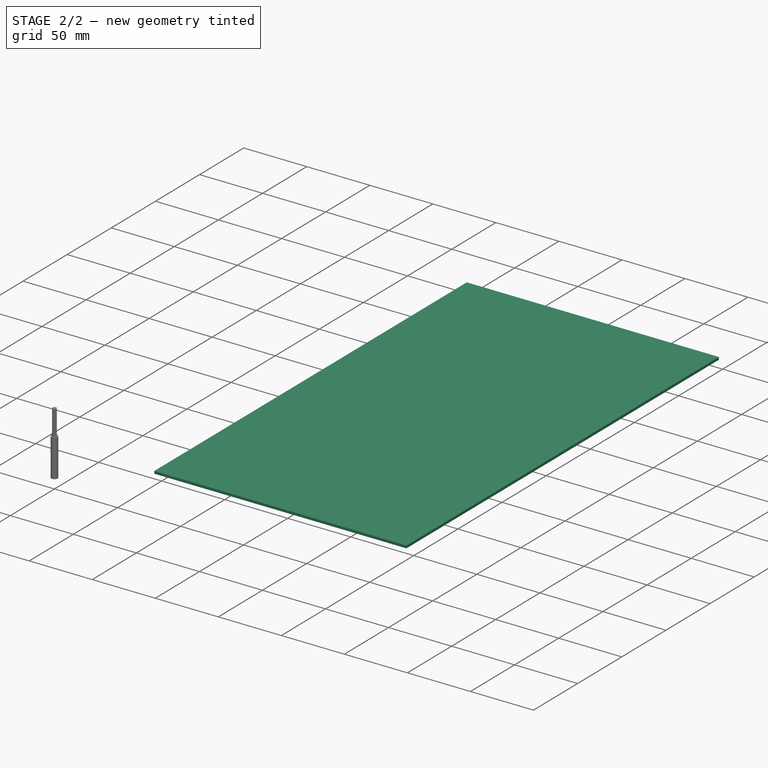
[diagram: stage 2 of 2 — iso view after this stage's code; geometry added in this stage tinted green]
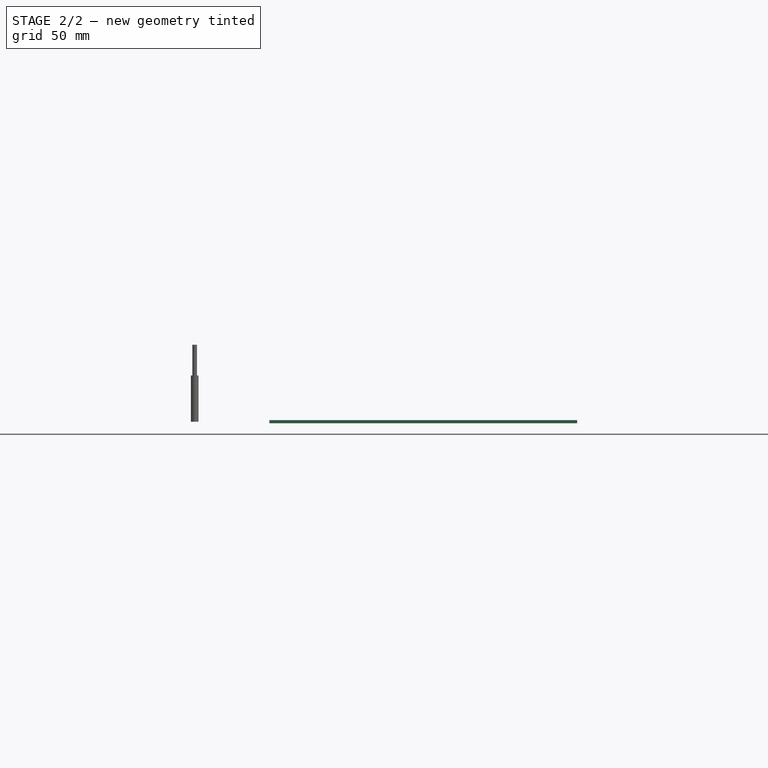
[diagram: stage 2 of 2 — front view after this stage's code; geometry added in this stage tinted green]
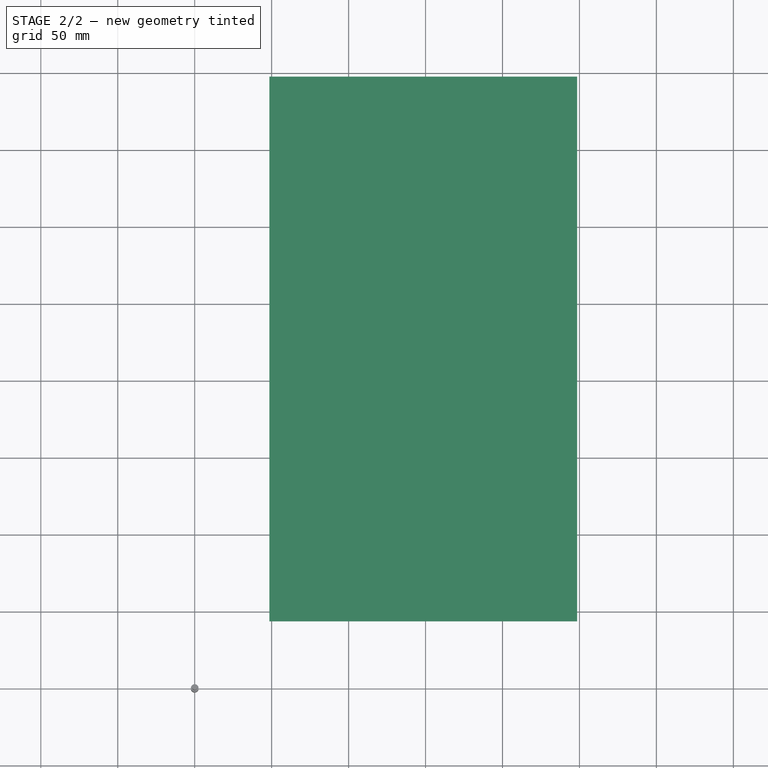
[diagram: stage 2 of 2 — top view after this stage's code; geometry added in this stage tinted green]
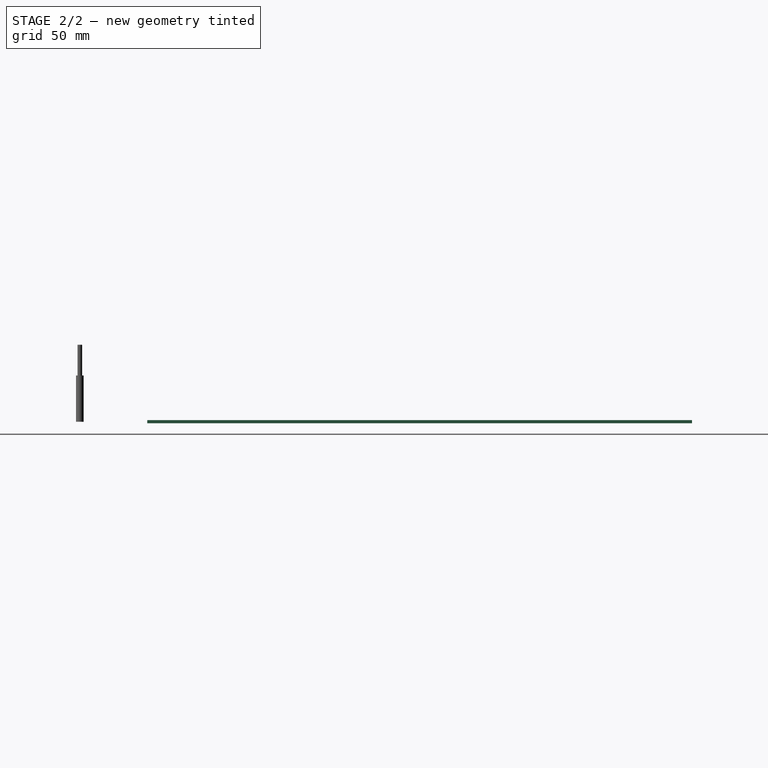
[diagram: stage 2 of 2 — right view after this stage's code; geometry added in this stage tinted green]
FEATURE [Path::FeaturePython] TC__Default_Tool  label="TC: Default Tool"  # Path/CAM operation (typed FeaturePython)
  HorizFeed = 0
  HorizRapid = 0
  SpindleDir = 0
  SpindleSpeed = 0
  Tool = -> ToolBit
  ToolNumber = 1
  VertFeed = 0
  VertRapid = 0
  expr: HorizRapid = SetupSheet.HorizRapid
  expr: VertRapid = SetupSheet.VertRapid
FEATURE [App::DocumentObjectGroup] Tools
  Group = -> [TC__Default_Tool]
FEATURE [Part::FeaturePython] Stock  # WARN: FeaturePython — macro-defined, semantics opaque (R4)
  Base = -> Model
  ExtXneg = 1
  ExtXpos = 1
  ExtYneg = 1
  ExtYpos = 1
  ExtZneg = 1
  ExtZpos = 1
  Placement = pos=(49.5,44.8363,0) rot=(0,0,1;0rad)
  StockType = FromBase
FEATURE [Path::FeaturePython] Engrave  # Path/CAM operation (typed FeaturePython)
  Active = true
  ClearanceHeight = 6
  CoolantMode = 0
  CycleTime = Cycletime Error
  FinalDepth = -5
  OpFinalDepth = -5
  OpStartDepth = 0
  OpStockZMax = 1
  OpStockZMin = -1
  OpToolDiameter = 5
  SafeHeight = 4
  StartDepth = 0
  StartVertex = 0
  StepDown = 5
  ToolController = -> TC__Default_Tool
  expr: ClearanceHeight = OpStockZMax + SetupSheet.ClearanceHeightOffset
  expr: FinalDepth = OpFinalDepth
  expr: SafeHeight = OpStockZMax + SetupSheet.SafeHeightOffset
  expr: StartDepth = OpStartDepth
  expr: StepDown = OpToolDiameter
FEATURE [App::DocumentObjectGroup] Operations
  Group = -> [Engrave]
FEATURE [Path::FeaturePython] Job  # Path/CAM operation (typed FeaturePython)
  CycleTime = 00:00:00
  Fixtures = G54
  GeometryTolerance = 0.01
  JobType = 0
  Model = -> Model
  Operations = -> Operations
  OrderOutputBy = 0
  PostProcessor = 1
  SetupSheet = -> SetupSheet
  SplitOutput = false
  Stock = -> Stock
  Tools = -> Tools
note: 1 file-system path scrubbed to <path> (originals preserved in the JSON sidecar)
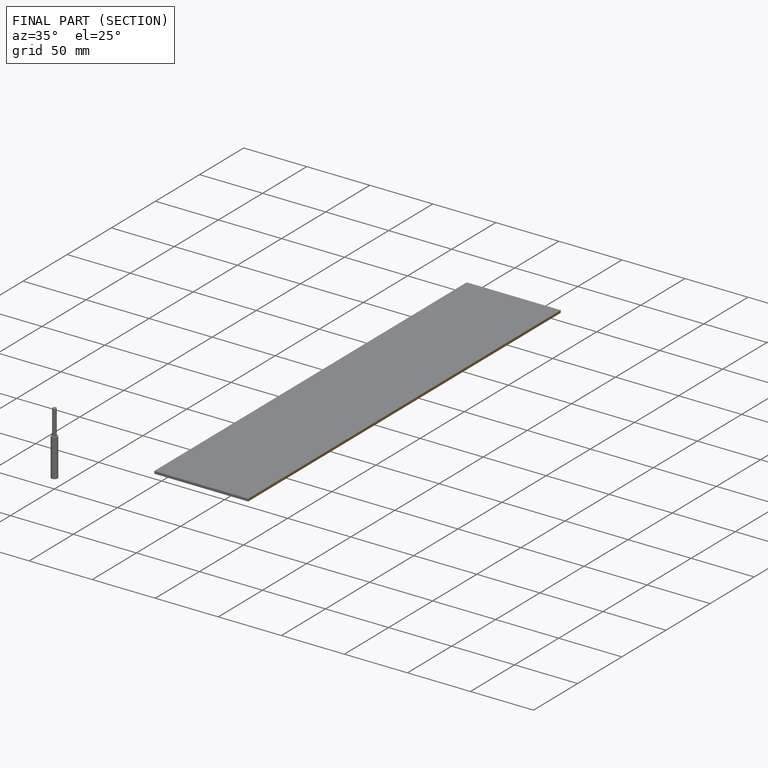
[diagram: finished part — half-section view (interior)]
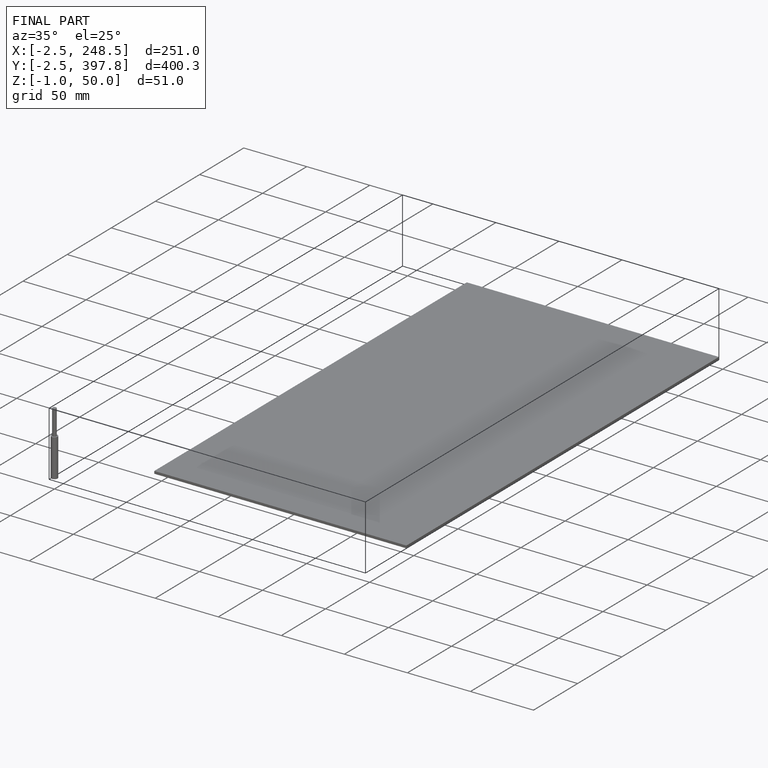
[diagram: finished part — iso view with bounding-box wireframe]
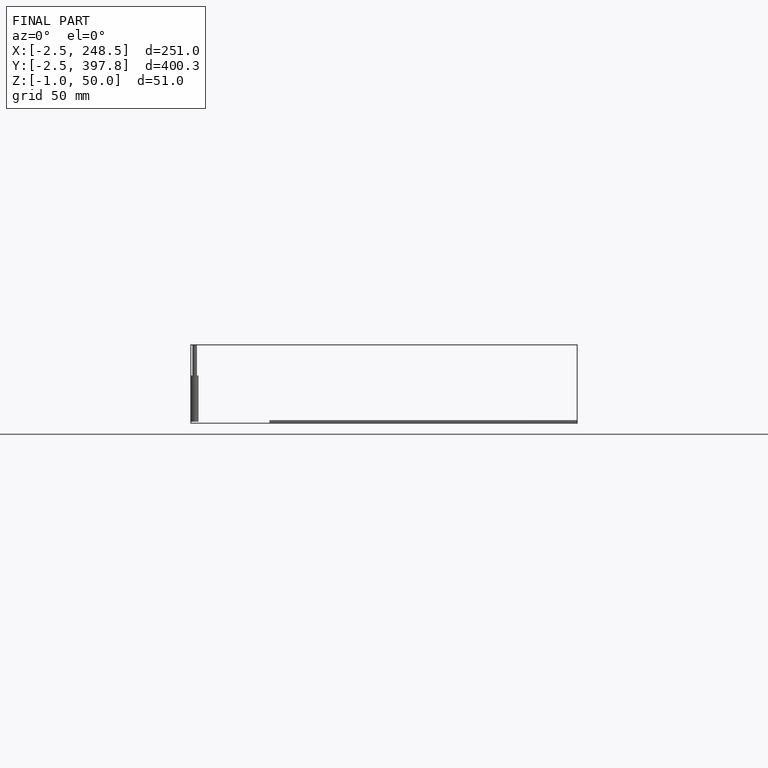
[diagram: finished part — front view with bounding-box wireframe]
